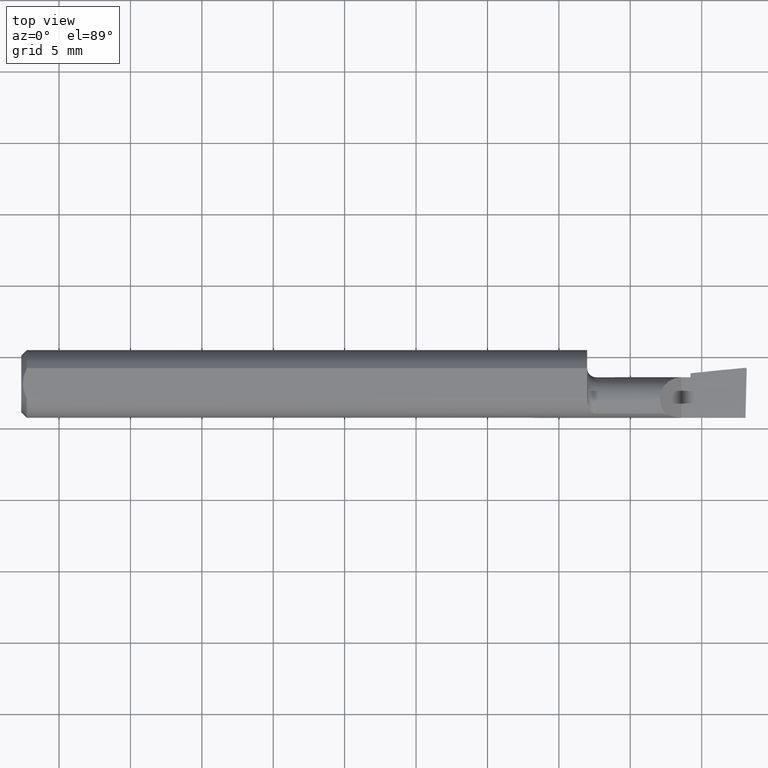
[diagram: clean part render]
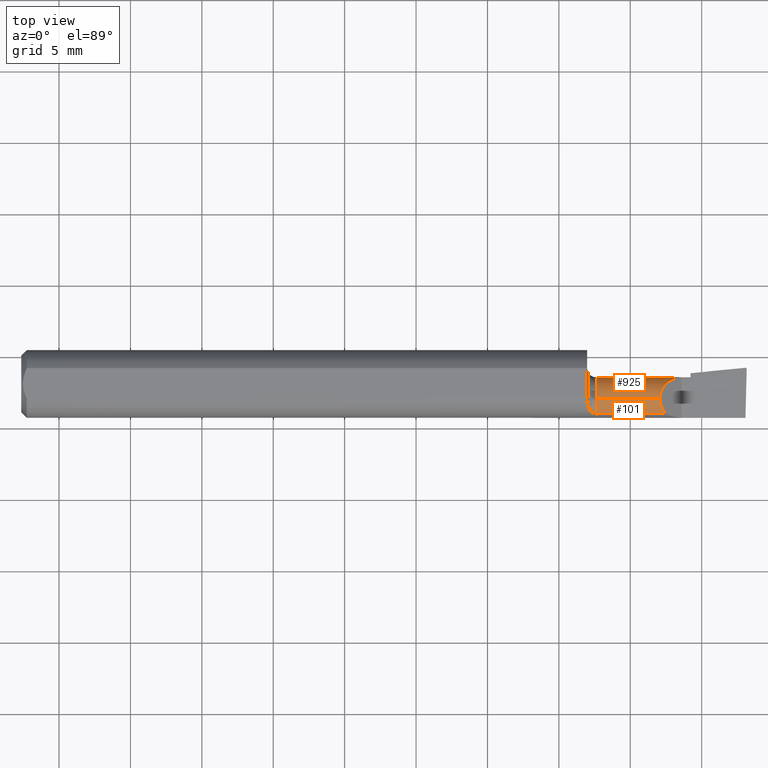
[diagram: same view with one multi-face feature highlighted, each face labeled with its STEP entity id]
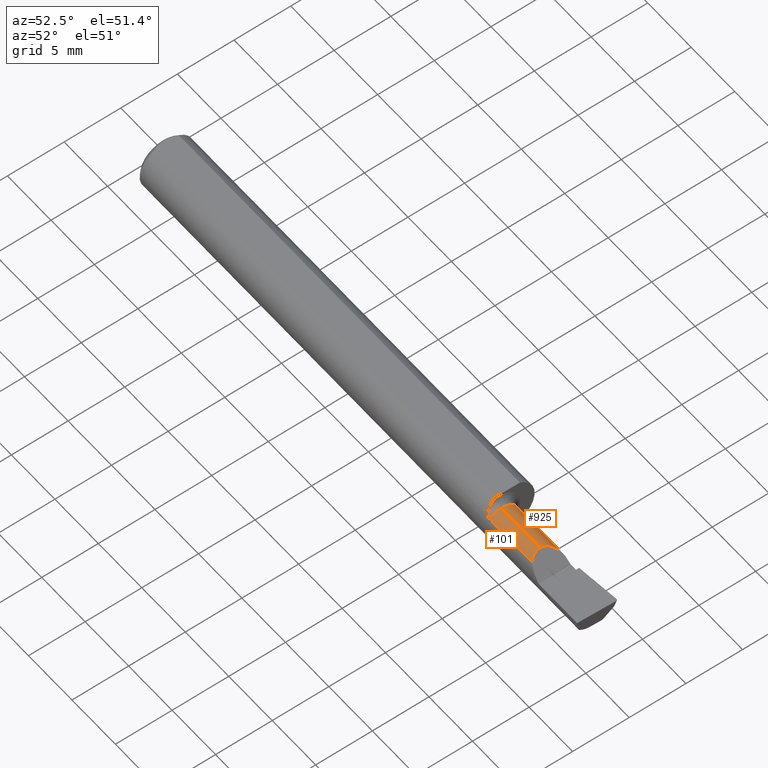
[diagram: same view with one multi-face feature highlighted, each face labeled with its STEP entity id]
A machine part, top view. The highlighted faces form ONE feature: a constant-radius fillet chain: 2 tangent blend faces with common blend radius 1.524 mm. The faces share edges in the B-rep.
A second angle (auxiliary view) of the same feature is appended — it is thin or edge-on in the first view.
Their STEP definitions:
[1] entity #925 (Cylinder):
#5 = CARTESIAN_POINT ( 'NONE',  ( 1.584999999999999964, -0.04159999999999999809, -0.06000000000000001166 ) ) ;
#13 = ORIENTED_EDGE ( 'NONE', *, *, #187, .T. ) ;
#62 = CARTESIAN_POINT ( 'NONE',  ( 1.760599999999999499, -0.006730866496891304424, 0.06000000000000001166 ) ) ;
#63 = FACE_OUTER_BOUND ( 'NONE', #153, .T. ) ;
#71 = EDGE_CURVE ( 'NONE', #274, #1072, #398, .T. ) ;
#79 = VECTOR ( 'NONE', #955, 39.37007874015748143 ) ;
#92 = AXIS2_PLACEMENT_3D ( 'NONE', #330, #1067, #258 ) ;
#153 = EDGE_LOOP ( 'NONE', ( #13, #363, #440, #1133, #246, #408, #416 ) ) ;
#187 = EDGE_CURVE ( 'NONE', #241, #274, #1154, .T. ) ;
#214 = DIRECTION ( 'NONE',  ( -1.000000000000000000, -0.000000000000000000, -0.000000000000000000 ) ) ;
#240 = DIRECTION ( 'NONE',  ( -1.000000000000000000, -0.000000000000000000, -0.000000000000000000 ) ) ;
#241 = VERTEX_POINT ( 'NONE', #419 ) ;
#246 = ORIENTED_EDGE ( 'NONE', *, *, #253, .F. ) ;
#250 = CARTESIAN_POINT ( 'NONE',  ( 1.820000000000000062, 0.01839699992499626083, 0.0005999999999998344982 ) ) ;
#251 = CARTESIAN_POINT ( 'NONE',  ( 1.584999999999999964, -0.04160000000000000503, 0.06000000000000001166 ) ) ;
#253 = EDGE_CURVE ( 'NONE', #380, #1095, #647, .T. ) ;
#258 = DIRECTION ( 'NONE',  ( 0.000000000000000000, 0.000000000000000000, -1.000000000000000000 ) ) ;
#274 = VERTEX_POINT ( 'NONE', #1168 ) ;
#293 = CARTESIAN_POINT ( 'NONE',  ( 1.820000000000000062, 0.01839699992499626083, 0.0005999999999998344982 ) ) ;
#330 = CARTESIAN_POINT ( 'NONE',  ( 1.820000000000000062, -0.04160000000000000503, 0.000000000000000000 ) ) ;
#340 = EDGE_CURVE ( 'NONE', #1095, #1049, #568, .T. ) ;
#352 = VECTOR ( 'NONE', #214, 39.37007874015748143 ) ;
#363 = ORIENTED_EDGE ( 'NONE', *, *, #71, .T. ) ;
#380 = VERTEX_POINT ( 'NONE', #293 ) ;
#398 = LINE ( 'NONE', #1123, #352 ) ;
#408 = ORIENTED_EDGE ( 'NONE', *, *, #1039, .F. ) ;
#416 = ORIENTED_EDGE ( 'NONE', *, *, #492, .T. ) ;
#419 = CARTESIAN_POINT ( 'NONE',  ( 1.845000000000000195, 0.01839999999999999969, -2.561107494060246767E-17 ) ) ;
#424 = CARTESIAN_POINT ( 'NONE',  ( 1.845000000000000195, -0.04160000000000000503, 0.000000000000000000 ) ) ;
#440 = ORIENTED_EDGE ( 'NONE', *, *, #988, .T. ) ;
#490 = CARTESIAN_POINT ( 'NONE',  ( 1.820000000000000062, 0.01839999999999999969, -2.561107494060246767E-17 ) ) ;
#492 = EDGE_CURVE ( 'NONE', #606, #241, #1128, .T. ) ;
#568 = LINE ( 'NONE', #1105, #79 ) ;
#598 = DIRECTION ( 'NONE',  ( -1.000000000000000000, -0.000000000000000000, -0.000000000000000000 ) ) ;
#606 = VERTEX_POINT ( 'NONE', #490 ) ;
#609 = AXIS2_PLACEMENT_3D ( 'NONE', #424, #598, #804 ) ;
#611 = DIRECTION ( 'NONE',  ( 1.000000000000000000, 0.000000000000000000, 0.000000000000000000 ) ) ;
#621 = AXIS2_PLACEMENT_3D ( 'NONE', #981, #240, #808 ) ;
#625 = VECTOR ( 'NONE', #932, 39.37007874015748143 ) ;
#647 =( BOUNDED_CURVE ( )  B_SPLINE_CURVE ( 3, ( #250, #1151, #62, #799 ),
 .UNSPECIFIED., .F., .T. ) 
 B_SPLINE_CURVE_WITH_KNOTS ( ( 4, 4 ),
 ( 4.722389147058852821, 6.283185307179586232 ),
 .UNSPECIFIED. ) 
 CURVE ( )  GEOMETRIC_REPRESENTATION_ITEM ( )  RATIONAL_B_SPLINE_CURVE ( ( 1.000000000000000000, 0.8070890134517290093, 0.8070890134517290093, 1.000000000000000000 ) ) 
 REPRESENTATION_ITEM ( '' )  );
#661 = CIRCLE ( 'NONE', #92, 0.06000000000000001166 ) ;
#682 = CIRCLE ( 'NONE', #1125, 0.06000000000000001166 ) ;
#769 = CARTESIAN_POINT ( 'NONE',  ( 1.560000000000000053, 0.01839999999999999969, -2.561107494060246767E-17 ) ) ;
#799 = CARTESIAN_POINT ( 'NONE',  ( 1.760599999999999499, -0.04160000000000000503, 0.06000000000000001166 ) ) ;
#800 = CYLINDRICAL_SURFACE ( 'NONE', #621, 0.06000000000000001166 ) ;
#804 = DIRECTION ( 'NONE',  ( 0.000000000000000000, 0.000000000000000000, 1.000000000000000000 ) ) ;
#805 = CARTESIAN_POINT ( 'NONE',  ( 1.584999999999999964, -0.04160000000000000503, 0.000000000000000000 ) ) ;
#808 = DIRECTION ( 'NONE',  ( 0.000000000000000000, 0.000000000000000000, 1.000000000000000000 ) ) ;
#924 = CARTESIAN_POINT ( 'NONE',  ( 1.760599999999999499, -0.04160000000000000503, 0.06000000000000001166 ) ) ;
#925 = ADVANCED_FACE ( 'NONE', ( #63 ), #800, .T. ) ;
#932 = DIRECTION ( 'NONE',  ( 1.000000000000000000, 0.000000000000000000, 0.000000000000000000 ) ) ;
#955 = DIRECTION ( 'NONE',  ( -1.000000000000000000, -0.000000000000000000, -0.000000000000000000 ) ) ;
#981 = CARTESIAN_POINT ( 'NONE',  ( 1.560000000000000053, -0.04160000000000000503, 0.000000000000000000 ) ) ;
#988 = EDGE_CURVE ( 'NONE', #1072, #1049, #682, .T. ) ;
#1039 = EDGE_CURVE ( 'NONE', #606, #380, #661, .T. ) ;
#1049 = VERTEX_POINT ( 'NONE', #251 ) ;
#1067 = DIRECTION ( 'NONE',  ( 1.000000000000000000, -0.000000000000000000, 0.000000000000000000 ) ) ;
#1072 = VERTEX_POINT ( 'NONE', #5 ) ;
#1095 = VERTEX_POINT ( 'NONE', #924 ) ;
#1105 = CARTESIAN_POINT ( 'NONE',  ( 1.560000000000000053, -0.04160000000000000503, 0.06000000000000001166 ) ) ;
#1123 = CARTESIAN_POINT ( 'NONE',  ( 1.560000000000000053, -0.04159999999999999809, -0.06000000000000001166 ) ) ;
#1125 = AXIS2_PLACEMENT_3D ( 'NONE', #805, #611, #1169 ) ;
#1128 = LINE ( 'NONE', #769, #625 ) ;
#1133 = ORIENTED_EDGE ( 'NONE', *, *, #340, .F. ) ;
#1151 = CARTESIAN_POINT ( 'NONE',  ( 1.785132609997154729, 0.01804830858996531173, 0.03546739000284470505 ) ) ;
#1154 = CIRCLE ( 'NONE', #609, 0.05999999999999999778 ) ;
#1168 = CARTESIAN_POINT ( 'NONE',  ( 1.845000000000000195, -0.04160000000000000503, -0.05999999999999999778 ) ) ;
#1169 = DIRECTION ( 'NONE',  ( 0.000000000000000000, 0.000000000000000000, -1.000000000000000000 ) ) ;
[2] entity #101 (Cylinder):
#52 = EDGE_CURVE ( 'NONE', #1049, #707, #95, .T. ) ;
#79 = VECTOR ( 'NONE', #955, 39.37007874015748143 ) ;
#95 = CIRCLE ( 'NONE', #768, 0.06000000000000001166 ) ;
#101 = ADVANCED_FACE ( 'NONE', ( #845 ), #392, .T. ) ;
#133 = DIRECTION ( 'NONE',  ( 0.000000000000000000, 0.000000000000000000, 1.000000000000000000 ) ) ;
#159 = EDGE_LOOP ( 'NONE', ( #270, #783, #701, #1098 ) ) ;
#161 =( BOUNDED_CURVE ( )  B_SPLINE_CURVE ( 3, ( #1112, #476, #192, #1134 ),
 .UNSPECIFIED., .F., .T. ) 
 B_SPLINE_CURVE_WITH_KNOTS ( ( 4, 4 ),
 ( 0.000000000000000000, 0.7575994919630483215 ),
 .UNSPECIFIED. ) 
 CURVE ( )  GEOMETRIC_REPRESENTATION_ITEM ( )  RATIONAL_B_SPLINE_CURVE ( ( 1.000000000000000000, 0.9527394435546669982, 0.9527394435546669982, 1.000000000000000000 ) ) 
 REPRESENTATION_ITEM ( '' )  );
#192 = CARTESIAN_POINT ( 'NONE',  ( 1.766341597446026368, -0.07155132897918978219, 0.05425840255397271217 ) ) ;
#196 = CARTESIAN_POINT ( 'NONE',  ( 1.777010739067528267, -0.08283076923076923559, 0.04358926093247115358 ) ) ;
#251 = CARTESIAN_POINT ( 'NONE',  ( 1.584999999999999964, -0.04160000000000000503, 0.06000000000000001166 ) ) ;
#270 = ORIENTED_EDGE ( 'NONE', *, *, #447, .F. ) ;
#296 = CARTESIAN_POINT ( 'NONE',  ( 1.584999999999999964, -0.08283076923076923559, 0.04358926093247113970 ) ) ;
#340 = EDGE_CURVE ( 'NONE', #1095, #1049, #568, .T. ) ;
#392 = CYLINDRICAL_SURFACE ( 'NONE', #543, 0.06000000000000001166 ) ;
#435 = VECTOR ( 'NONE', #1083, 39.37007874015748143 ) ;
#447 = EDGE_CURVE ( 'NONE', #1095, #744, #161, .T. ) ;
#476 = CARTESIAN_POINT ( 'NONE',  ( 1.760599999999999499, -0.05712598967308060716, 0.05999999999999999778 ) ) ;
#488 = DIRECTION ( 'NONE',  ( 0.000000000000000000, 0.000000000000000000, -1.000000000000000000 ) ) ;
#511 = LINE ( 'NONE', #887, #435 ) ;
#543 = AXIS2_PLACEMENT_3D ( 'NONE', #1137, #1025, #133 ) ;
#563 = CARTESIAN_POINT ( 'NONE',  ( 1.584999999999999964, -0.04160000000000000503, 0.000000000000000000 ) ) ;
#568 = LINE ( 'NONE', #1105, #79 ) ;
#676 = DIRECTION ( 'NONE',  ( 1.000000000000000000, 0.000000000000000000, 0.000000000000000000 ) ) ;
#701 = ORIENTED_EDGE ( 'NONE', *, *, #52, .T. ) ;
#707 = VERTEX_POINT ( 'NONE', #296 ) ;
#744 = VERTEX_POINT ( 'NONE', #196 ) ;
#768 = AXIS2_PLACEMENT_3D ( 'NONE', #563, #676, #488 ) ;
#783 = ORIENTED_EDGE ( 'NONE', *, *, #340, .T. ) ;
#845 = FACE_OUTER_BOUND ( 'NONE', #159, .T. ) ;
#887 = CARTESIAN_POINT ( 'NONE',  ( 1.702500000000000124, -0.08283076923076923559, 0.04358926093247113970 ) ) ;
#924 = CARTESIAN_POINT ( 'NONE',  ( 1.760599999999999499, -0.04160000000000000503, 0.06000000000000001166 ) ) ;
#934 = EDGE_CURVE ( 'NONE', #707, #744, #511, .T. ) ;
#955 = DIRECTION ( 'NONE',  ( -1.000000000000000000, -0.000000000000000000, -0.000000000000000000 ) ) ;
#1025 = DIRECTION ( 'NONE',  ( -1.000000000000000000, -0.000000000000000000, -0.000000000000000000 ) ) ;
#1049 = VERTEX_POINT ( 'NONE', #251 ) ;
#1083 = DIRECTION ( 'NONE',  ( 1.000000000000000000, 0.000000000000000000, 0.000000000000000000 ) ) ;
#1095 = VERTEX_POINT ( 'NONE', #924 ) ;
#1098 = ORIENTED_EDGE ( 'NONE', *, *, #934, .T. ) ;
#1105 = CARTESIAN_POINT ( 'NONE',  ( 1.560000000000000053, -0.04160000000000000503, 0.06000000000000001166 ) ) ;
#1112 = CARTESIAN_POINT ( 'NONE',  ( 1.760599999999999499, -0.04160000000000000503, 0.06000000000000001166 ) ) ;
#1134 = CARTESIAN_POINT ( 'NONE',  ( 1.777010739067528267, -0.08283076923076923559, 0.04358926093247115358 ) ) ;
#1137 = CARTESIAN_POINT ( 'NONE',  ( 1.560000000000000053, -0.04160000000000000503, 0.000000000000000000 ) ) ;